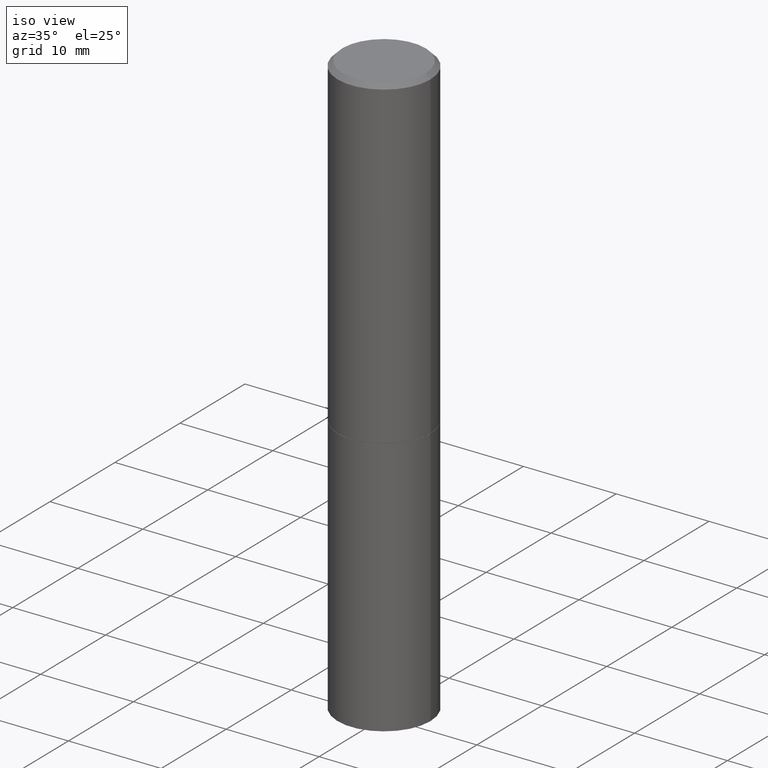
[diagram: clean part render]
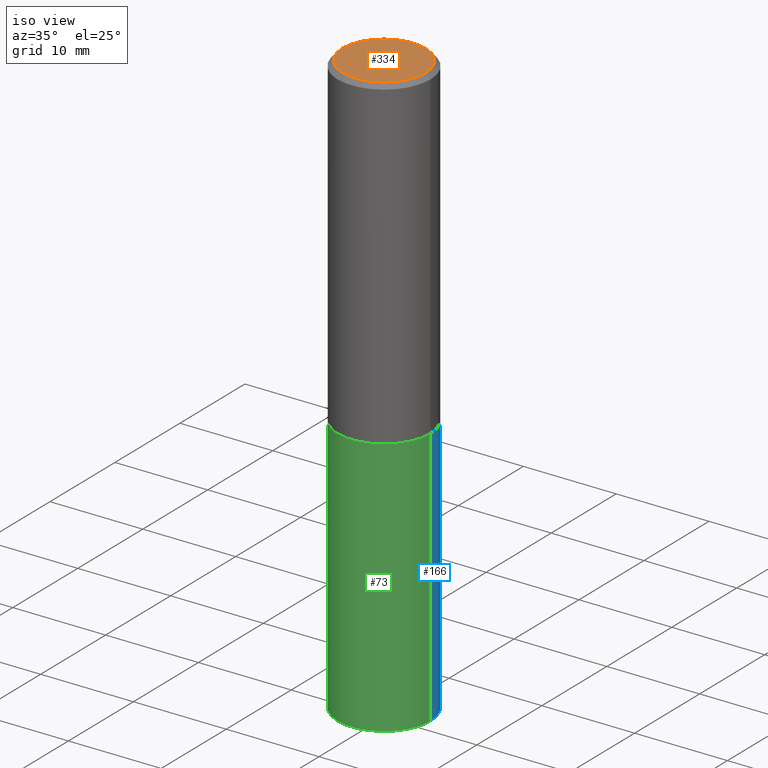
[diagram: same view with three faces highlighted in distinct colors, each labeled with its STEP entity id]
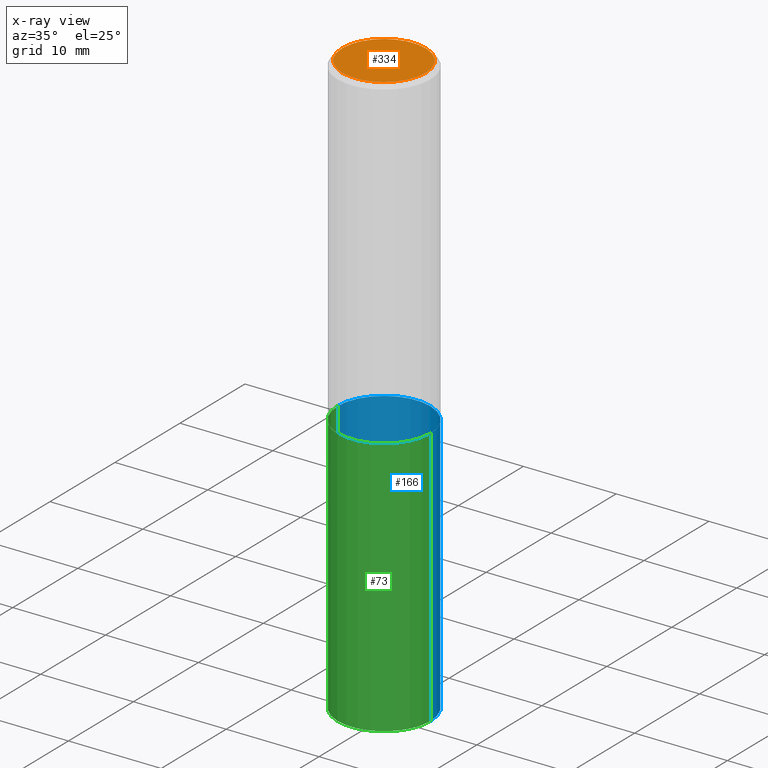
[diagram: x-ray of the same camera — body ghosted, the three highlighted faces saturated]
A machine part, iso view with three faces highlighted in distinct colors.
The next image is the same camera in x-ray (body ghosted, the three faces saturated) — at least one of them is partly hidden behind the body in this view.
Their STEP definitions:

[orange] entity #334 — the highlighted planar face has unit normal (0, -0, -1).
#7 = AXIS2_PLACEMENT_3D ( 'NONE', #190, #248, #224 ) ;
#22 = DIRECTION ( 'NONE',  ( -1.000000000000000000, 6.982962677686265922E-15, -4.876176775795935793E-29 ) ) ;
#28 = DIRECTION ( 'NONE',  ( 1.000000000000000000, -6.982962677686266711E-15, 4.875932113059884174E-29 ) ) ;
#52 = CARTESIAN_POINT ( 'NONE',  ( 1.234936949548814617E-15, 0.1768499999999997851, -6.153342185293593634E-16 ) ) ;
#57 = ORIENTED_EDGE ( 'NONE', *, *, #235, .T. ) ;
#100 = EDGE_CURVE ( 'NONE', #135, #102, #255, .T. ) ;
#102 = VERTEX_POINT ( 'NONE', #127 ) ;
#127 = CARTESIAN_POINT ( 'NONE',  ( -0.1768499999999997851, 1.269851762937246069E-15, 4.268512490091652920E-18 ) ) ;
#135 = VERTEX_POINT ( 'NONE', #252 ) ;
#178 = CARTESIAN_POINT ( 'NONE',  ( -1.043851414335219820E-46, 1.490343170380447200E-32, 4.268512490100411279E-18 ) ) ;
#180 = AXIS2_PLACEMENT_3D ( 'NONE', #52, #313, #22 ) ;
#190 = CARTESIAN_POINT ( 'NONE',  ( -1.043851414335219820E-46, 1.490343170380447200E-32, 4.268512490100411279E-18 ) ) ;
#203 = CIRCLE ( 'NONE', #7, 0.1768499999999997851 ) ;
#207 = PLANE ( 'NONE',  #180 ) ;
#224 = DIRECTION ( 'NONE',  ( 1.000000000000000000, -6.982962677686266711E-15, 4.875932113059884174E-29 ) ) ;
#235 = EDGE_CURVE ( 'NONE', #102, #135, #203, .T. ) ;
#236 = EDGE_LOOP ( 'NONE', ( #57, #305 ) ) ;
#248 = DIRECTION ( 'NONE',  ( -2.445468806185136597E-29, 3.491481338843145583E-15, 1.000000000000000000 ) ) ;
#252 = CARTESIAN_POINT ( 'NONE',  ( 0.1768499999999997851, -1.316798864272040563E-15, 4.268512490109333727E-18 ) ) ;
#255 = CIRCLE ( 'NONE', #311, 0.1768499999999997851 ) ;
#305 = ORIENTED_EDGE ( 'NONE', *, *, #100, .T. ) ;
#311 = AXIS2_PLACEMENT_3D ( 'NONE', #178, #318, #28 ) ;
#313 = DIRECTION ( 'NONE',  ( 2.438088387897960049E-29, -3.491481338843145188E-15, -1.000000000000000000 ) ) ;
#318 = DIRECTION ( 'NONE',  ( -2.445468806185136597E-29, 3.491481338843145583E-15, 1.000000000000000000 ) ) ;
#334 = ADVANCED_FACE ( 'NONE', ( #340 ), #207, .F. ) ;
#340 = FACE_OUTER_BOUND ( 'NONE', #236, .T. ) ;

[blue] entity #166 — the highlighted cylindrical surface (partial cylindrical patch) has radius 5 mm, axis along (-0, 0, 1).
#5 = EDGE_CURVE ( 'NONE', #351, #182, #170, .T. ) ;
#19 = AXIS2_PLACEMENT_3D ( 'NONE', #250, #271, #295 ) ;
#24 = ORIENTED_EDGE ( 'NONE', *, *, #31, .T. ) ;
#29 = EDGE_LOOP ( 'NONE', ( #259, #24, #350, #319 ) ) ;
#31 = EDGE_CURVE ( 'NONE', #278, #182, #169, .T. ) ;
#34 = CIRCLE ( 'NONE', #353, 0.1968500000000000250 ) ;
#40 = CARTESIAN_POINT ( 'NONE',  ( -0.1968500000000000250, -5.336713275418556283E-15, -1.377900000000000125 ) ) ;
#47 = DIRECTION ( 'NONE',  ( 1.000000000000000000, -6.982962677686267499E-15, 0.000000000000000000 ) ) ;
#58 = VECTOR ( 'NONE', #142, 39.37007874015748143 ) ;
#72 = CARTESIAN_POINT ( 'NONE',  ( 6.065496279980994755E-29, -8.659921164732655335E-15, -2.480300000000000171 ) ) ;
#84 = CARTESIAN_POINT ( 'NONE',  ( 0.1968500000000000250, -6.185508339894512836E-15, -1.377900000000000125 ) ) ;
#88 = VERTEX_POINT ( 'NONE', #148 ) ;
#103 = FACE_OUTER_BOUND ( 'NONE', #29, .T. ) ;
#106 = CYLINDRICAL_SURFACE ( 'NONE', #19, 0.1968500000000000250 ) ;
#111 = CARTESIAN_POINT ( 'NONE',  ( 3.369611468042499724E-29, -4.810912136791970439E-15, -1.377900000000000125 ) ) ;
#118 = DIRECTION ( 'NONE',  ( -2.445468806185136877E-29, 3.491481338843145188E-15, 1.000000000000000000 ) ) ;
#122 = AXIS2_PLACEMENT_3D ( 'NONE', #111, #199, #47 ) ;
#138 = VECTOR ( 'NONE', #118, 39.37007874015748143 ) ;
#142 = DIRECTION ( 'NONE',  ( -2.445468806185136877E-29, 3.491481338843145188E-15, 1.000000000000000000 ) ) ;
#148 = CARTESIAN_POINT ( 'NONE',  ( 0.1968500000000000250, -1.003451736783519694E-14, -2.480300000000000171 ) ) ;
#166 = ADVANCED_FACE ( 'NONE', ( #103 ), #106, .T. ) ;
#169 = LINE ( 'NONE', #280, #58 ) ;
#170 = CIRCLE ( 'NONE', #122, 0.1968500000000000250 ) ;
#171 = EDGE_CURVE ( 'NONE', #88, #278, #34, .T. ) ;
#176 = CARTESIAN_POINT ( 'NONE',  ( 0.1968500000000000250, -1.374596203102541608E-15, 9.598753983154300858E-30 ) ) ;
#182 = VERTEX_POINT ( 'NONE', #40 ) ;
#192 = DIRECTION ( 'NONE',  ( -2.445468806185136597E-29, 3.491481338843145583E-15, 1.000000000000000000 ) ) ;
#199 = DIRECTION ( 'NONE',  ( -2.445468806185136597E-29, 3.491481338843145583E-15, 1.000000000000000000 ) ) ;
#250 = CARTESIAN_POINT ( 'NONE',  ( 0.000000000000000000, 0.000000000000000000, 0.000000000000000000 ) ) ;
#259 = ORIENTED_EDGE ( 'NONE', *, *, #171, .T. ) ;
#271 = DIRECTION ( 'NONE',  ( -2.445468806185136597E-29, 3.491481338843145583E-15, 1.000000000000000000 ) ) ;
#278 = VERTEX_POINT ( 'NONE', #282 ) ;
#280 = CARTESIAN_POINT ( 'NONE',  ( -0.1968500000000000250, 1.398703375343757393E-15, -9.682923725166783677E-30 ) ) ;
#282 = CARTESIAN_POINT ( 'NONE',  ( -0.1968500000000000250, -5.336713275418556283E-15, -2.480300000000000171 ) ) ;
#292 = EDGE_CURVE ( 'NONE', #88, #351, #314, .T. ) ;
#295 = DIRECTION ( 'NONE',  ( 1.000000000000000000, -6.982962677686265922E-15, 4.876176775795935793E-29 ) ) ;
#314 = LINE ( 'NONE', #176, #138 ) ;
#319 = ORIENTED_EDGE ( 'NONE', *, *, #292, .F. ) ;
#350 = ORIENTED_EDGE ( 'NONE', *, *, #5, .F. ) ;
#351 = VERTEX_POINT ( 'NONE', #84 ) ;
#353 = AXIS2_PLACEMENT_3D ( 'NONE', #72, #192, #354 ) ;
#354 = DIRECTION ( 'NONE',  ( 1.000000000000000000, -6.982962677686267499E-15, 0.000000000000000000 ) ) ;

[green] entity #73 — the highlighted cylindrical surface (partial cylindrical patch) has radius 5 mm, axis along (-0, 0, 1).
#31 = EDGE_CURVE ( 'NONE', #278, #182, #169, .T. ) ;
#33 = DIRECTION ( 'NONE',  ( 1.000000000000000000, -6.982962677686267499E-15, 0.000000000000000000 ) ) ;
#37 = ORIENTED_EDGE ( 'NONE', *, *, #31, .F. ) ;
#40 = CARTESIAN_POINT ( 'NONE',  ( -0.1968500000000000250, -5.336713275418556283E-15, -1.377900000000000125 ) ) ;
#58 = VECTOR ( 'NONE', #142, 39.37007874015748143 ) ;
#73 = ADVANCED_FACE ( 'NONE', ( #129 ), #325, .T. ) ;
#74 = CARTESIAN_POINT ( 'NONE',  ( 0.000000000000000000, 0.000000000000000000, 0.000000000000000000 ) ) ;
#81 = AXIS2_PLACEMENT_3D ( 'NONE', #74, #162, #137 ) ;
#84 = CARTESIAN_POINT ( 'NONE',  ( 0.1968500000000000250, -6.185508339894512836E-15, -1.377900000000000125 ) ) ;
#88 = VERTEX_POINT ( 'NONE', #148 ) ;
#90 = AXIS2_PLACEMENT_3D ( 'NONE', #364, #260, #335 ) ;
#99 = CARTESIAN_POINT ( 'NONE',  ( 6.065496279980994755E-29, -8.659921164732655335E-15, -2.480300000000000171 ) ) ;
#118 = DIRECTION ( 'NONE',  ( -2.445468806185136877E-29, 3.491481338843145188E-15, 1.000000000000000000 ) ) ;
#129 = FACE_OUTER_BOUND ( 'NONE', #327, .T. ) ;
#137 = DIRECTION ( 'NONE',  ( 1.000000000000000000, -6.982962677686265922E-15, 4.876176775795935793E-29 ) ) ;
#138 = VECTOR ( 'NONE', #118, 39.37007874015748143 ) ;
#142 = DIRECTION ( 'NONE',  ( -2.445468806185136877E-29, 3.491481338843145188E-15, 1.000000000000000000 ) ) ;
#148 = CARTESIAN_POINT ( 'NONE',  ( 0.1968500000000000250, -1.003451736783519694E-14, -2.480300000000000171 ) ) ;
#162 = DIRECTION ( 'NONE',  ( -2.445468806185136597E-29, 3.491481338843145583E-15, 1.000000000000000000 ) ) ;
#169 = LINE ( 'NONE', #280, #58 ) ;
#176 = CARTESIAN_POINT ( 'NONE',  ( 0.1968500000000000250, -1.374596203102541608E-15, 9.598753983154300858E-30 ) ) ;
#182 = VERTEX_POINT ( 'NONE', #40 ) ;
#189 = ORIENTED_EDGE ( 'NONE', *, *, #360, .T. ) ;
#193 = ORIENTED_EDGE ( 'NONE', *, *, #338, .F. ) ;
#217 = DIRECTION ( 'NONE',  ( -2.445468806185136597E-29, 3.491481338843145583E-15, 1.000000000000000000 ) ) ;
#239 = AXIS2_PLACEMENT_3D ( 'NONE', #99, #217, #33 ) ;
#260 = DIRECTION ( 'NONE',  ( -2.445468806185136597E-29, 3.491481338843145583E-15, 1.000000000000000000 ) ) ;
#278 = VERTEX_POINT ( 'NONE', #282 ) ;
#280 = CARTESIAN_POINT ( 'NONE',  ( -0.1968500000000000250, 1.398703375343757393E-15, -9.682923725166783677E-30 ) ) ;
#282 = CARTESIAN_POINT ( 'NONE',  ( -0.1968500000000000250, -5.336713275418556283E-15, -2.480300000000000171 ) ) ;
#284 = CIRCLE ( 'NONE', #239, 0.1968500000000000250 ) ;
#292 = EDGE_CURVE ( 'NONE', #88, #351, #314, .T. ) ;
#314 = LINE ( 'NONE', #176, #138 ) ;
#325 = CYLINDRICAL_SURFACE ( 'NONE', #81, 0.1968500000000000250 ) ;
#327 = EDGE_LOOP ( 'NONE', ( #37, #189, #349, #193 ) ) ;
#335 = DIRECTION ( 'NONE',  ( 1.000000000000000000, -6.982962677686267499E-15, 0.000000000000000000 ) ) ;
#336 = CIRCLE ( 'NONE', #90, 0.1968500000000000250 ) ;
#338 = EDGE_CURVE ( 'NONE', #182, #351, #336, .T. ) ;
#349 = ORIENTED_EDGE ( 'NONE', *, *, #292, .T. ) ;
#351 = VERTEX_POINT ( 'NONE', #84 ) ;
#360 = EDGE_CURVE ( 'NONE', #278, #88, #284, .T. ) ;
#364 = CARTESIAN_POINT ( 'NONE',  ( 3.369611468042499724E-29, -4.810912136791970439E-15, -1.377900000000000125 ) ) ;